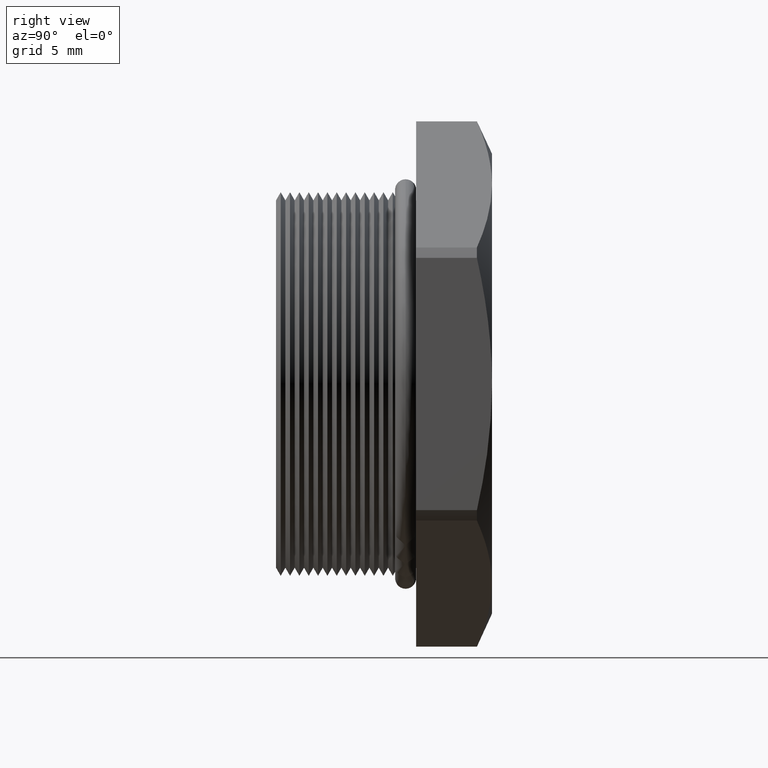
[diagram: clean part render]
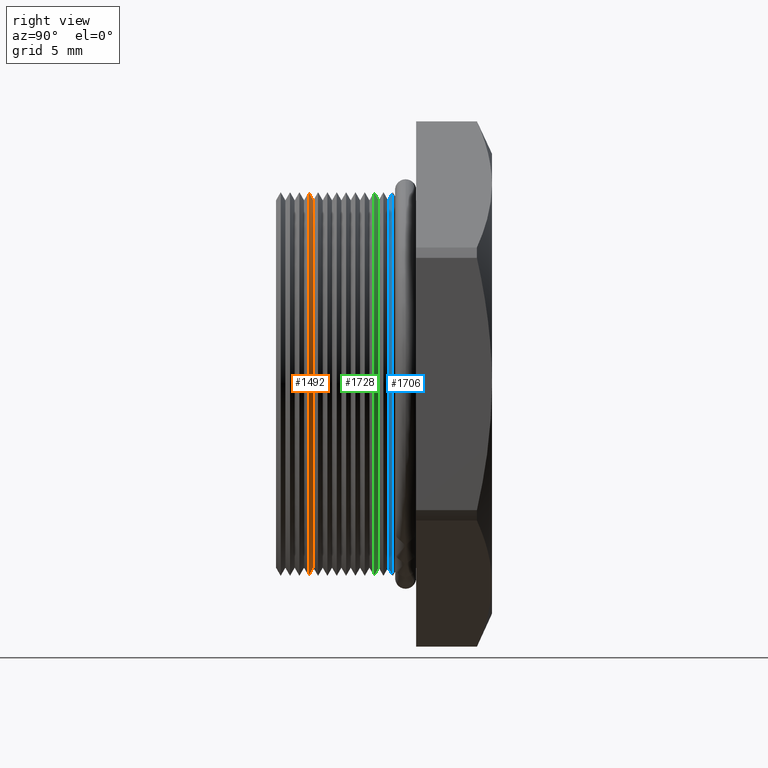
[diagram: same view with three faces highlighted in distinct colors, each labeled with its STEP entity id]
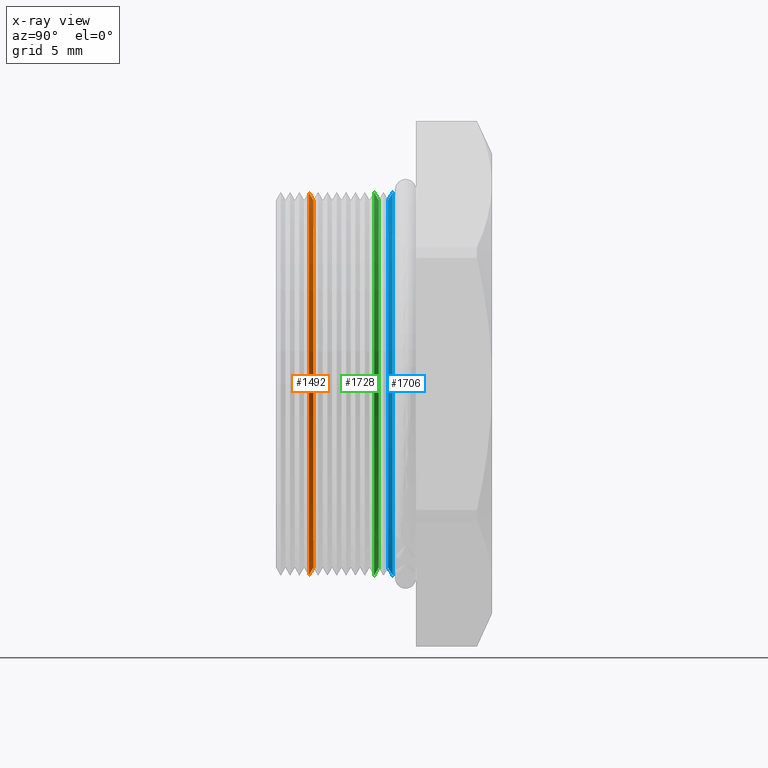
[diagram: x-ray of the same camera — body ghosted, the three highlighted faces saturated]
A machine part, right view with three faces highlighted in distinct colors.
The next image is the same camera in x-ray (body ghosted, the three faces saturated) — at least one of them is partly hidden behind the body in this view.
Their STEP definitions:

[orange] entity #1492 — the highlighted conical surface has half-angle 60 deg.
#1486 = VERTEX_POINT ( 'NONE', #4708 ) ;
#1488 = EDGE_CURVE ( 'NONE', #1489, #1486, #4707, .T. ) ;
#1489 = VERTEX_POINT ( 'NONE', #4702 ) ;
#1492 = ADVANCED_FACE ( 'NONE', ( #4695 ), #4694, .T. ) ;
#1493 = EDGE_LOOP ( 'NONE', ( #1494, #1498, #1555, #1556 ) ) ;
#1494 = ORIENTED_EDGE ( 'NONE', *, *, #1495, .T. ) ;
#1495 = EDGE_CURVE ( 'NONE', #1496, #1497, #4752, .T. ) ;
#1496 = VERTEX_POINT ( 'NONE', #4747 ) ;
#1497 = VERTEX_POINT ( 'NONE', #4746 ) ;
#1498 = ORIENTED_EDGE ( 'NONE', *, *, #1554, .T. ) ;
#1554 = EDGE_CURVE ( 'NONE', #1497, #1489, #4822, .T. ) ;
#1555 = ORIENTED_EDGE ( 'NONE', *, *, #1488, .T. ) ;
#1556 = ORIENTED_EDGE ( 'NONE', *, *, #1557, .F. ) ;
#1557 = EDGE_CURVE ( 'NONE', #1496, #1486, #4818, .T. ) ;
#4694 = CONICAL_SURFACE ( 'NONE', #4697, 0.3150000000000000000, 1.047197551196596700 ) ;
#4695 = FACE_OUTER_BOUND ( 'NONE', #1493, .T. ) ;
#4696 = CARTESIAN_POINT ( 'NONE',  ( 0.0000000000000000000, 0.1014172448100089100, 0.0000000000000000000 ) ) ;
#4697 = AXIS2_PLACEMENT_3D ( 'NONE', #4696, #4754, #4753 ) ;
#4702 = CARTESIAN_POINT ( 'NONE',  ( 4.026318816969966200E-017, 0.09346489058294796300, 0.3287738815610546400 ) ) ;
#4703 = DIRECTION ( 'NONE',  ( 0.0000000000000000000, 0.0000000000000000000, 1.000000000000000000 ) ) ;
#4704 = DIRECTION ( 'NONE',  ( -0.0000000000000000000, 1.000000000000000000, -0.0000000000000000000 ) ) ;
#4705 = CARTESIAN_POINT ( 'NONE',  ( 0.0000000000000000000, 0.09346489058294796300, 0.0000000000000000000 ) ) ;
#4706 = AXIS2_PLACEMENT_3D ( 'NONE', #4705, #4704, #4703 ) ;
#4707 = CIRCLE ( 'NONE', #4706, 0.3287738815610546400 ) ;
#4708 = CARTESIAN_POINT ( 'NONE',  ( 0.0000000000000000000, 0.09346489058294796300, -0.3287738815610546400 ) ) ;
#4746 = CARTESIAN_POINT ( 'NONE',  ( 3.857637417314162700E-017, 0.1014172448100089100, 0.3150000000000000000 ) ) ;
#4747 = CARTESIAN_POINT ( 'NONE',  ( 0.0000000000000000000, 0.1014172448100089100, -0.3150000000000000000 ) ) ;
#4748 = DIRECTION ( 'NONE',  ( 0.0000000000000000000, 0.0000000000000000000, -1.000000000000000000 ) ) ;
#4749 = DIRECTION ( 'NONE',  ( 0.0000000000000000000, -1.000000000000000000, 0.0000000000000000000 ) ) ;
#4750 = CARTESIAN_POINT ( 'NONE',  ( 0.0000000000000000000, 0.1014172448100089100, 0.0000000000000000000 ) ) ;
#4751 = AXIS2_PLACEMENT_3D ( 'NONE', #4750, #4749, #4748 ) ;
#4752 = CIRCLE ( 'NONE', #4751, 0.3150000000000000000 ) ;
#4753 = DIRECTION ( 'NONE',  ( 0.0000000000000000000, 0.0000000000000000000, -1.000000000000000000 ) ) ;
#4754 = DIRECTION ( 'NONE',  ( 0.0000000000000000000, -1.000000000000000000, 0.0000000000000000000 ) ) ;
#4818 = LINE ( 'NONE', #4880, #4879 ) ;
#4819 = DIRECTION ( 'NONE',  ( 1.060575238724906300E-016, -0.5000000000000008900, 0.8660254037844380400 ) ) ;
#4820 = VECTOR ( 'NONE', #4819, 39.37007874015748100 ) ;
#4821 = CARTESIAN_POINT ( 'NONE',  ( 3.857637417314162700E-017, 0.1014172448100089100, 0.3150000000000000000 ) ) ;
#4822 = LINE ( 'NONE', #4821, #4820 ) ;
#4878 = DIRECTION ( 'NONE',  ( 0.0000000000000000000, -0.5000000000000008900, -0.8660254037844380400 ) ) ;
#4879 = VECTOR ( 'NONE', #4878, 39.37007874015748100 ) ;
#4880 = CARTESIAN_POINT ( 'NONE',  ( 0.0000000000000000000, 0.1014172448100089100, -0.3150000000000000000 ) ) ;

[blue] entity #1706 — the highlighted conical surface has half-angle 60 deg.
#1706 = ADVANCED_FACE ( 'NONE', ( #5153 ), #5152, .T. ) ;
#1707 = EDGE_LOOP ( 'NONE', ( #1760, #1764, #1767, #1770 ) ) ;
#1760 = ORIENTED_EDGE ( 'NONE', *, *, #1761, .T. ) ;
#1761 = EDGE_CURVE ( 'NONE', #1762, #1763, #5237, .T. ) ;
#1762 = VERTEX_POINT ( 'NONE', #5232 ) ;
#1763 = VERTEX_POINT ( 'NONE', #5231 ) ;
#1764 = ORIENTED_EDGE ( 'NONE', *, *, #1765, .T. ) ;
#1765 = EDGE_CURVE ( 'NONE', #1763, #1766, #5230, .T. ) ;
#1766 = VERTEX_POINT ( 'NONE', #5226 ) ;
#1767 = ORIENTED_EDGE ( 'NONE', *, *, #1768, .F. ) ;
#1768 = EDGE_CURVE ( 'NONE', #1769, #1766, #5225, .T. ) ;
#1769 = VERTEX_POINT ( 'NONE', #5284 ) ;
#1770 = ORIENTED_EDGE ( 'NONE', *, *, #1771, .F. ) ;
#1771 = EDGE_CURVE ( 'NONE', #1762, #1769, #5283, .T. ) ;
#5148 = DIRECTION ( 'NONE',  ( 0.0000000000000000000, 0.0000000000000000000, 1.000000000000000000 ) ) ;
#5149 = DIRECTION ( 'NONE',  ( -0.0000000000000000000, 1.000000000000000000, -0.0000000000000000000 ) ) ;
#5150 = CARTESIAN_POINT ( 'NONE',  ( 0.0000000000000000000, 0.2375548905829479900, 0.0000000000000000000 ) ) ;
#5151 = AXIS2_PLACEMENT_3D ( 'NONE', #5150, #5149, #5148 ) ;
#5152 = CONICAL_SURFACE ( 'NONE', #5151, 0.3287738815610546400, 1.047197551196598700 ) ;
#5153 = FACE_OUTER_BOUND ( 'NONE', #1707, .T. ) ;
#5221 = DIRECTION ( 'NONE',  ( 0.0000000000000000000, 0.0000000000000000000, 1.000000000000000000 ) ) ;
#5222 = DIRECTION ( 'NONE',  ( -0.0000000000000000000, 1.000000000000000000, -0.0000000000000000000 ) ) ;
#5223 = CARTESIAN_POINT ( 'NONE',  ( 0.0000000000000000000, 0.2375548905829479900, 0.0000000000000000000 ) ) ;
#5224 = AXIS2_PLACEMENT_3D ( 'NONE', #5223, #5222, #5221 ) ;
#5225 = CIRCLE ( 'NONE', #5224, 0.3287738815610546400 ) ;
#5226 = CARTESIAN_POINT ( 'NONE',  ( 0.0000000000000000000, 0.2375548905829479900, -0.3287738815610546400 ) ) ;
#5227 = DIRECTION ( 'NONE',  ( 1.060575238724907500E-016, 0.4999999999999991100, -0.8660254037844391500 ) ) ;
#5228 = VECTOR ( 'NONE', #5227, 39.37007874015748100 ) ;
#5229 = CARTESIAN_POINT ( 'NONE',  ( 4.026318816969965600E-017, 0.2375548905829479900, -0.3287738815610546400 ) ) ;
#5230 = LINE ( 'NONE', #5229, #5228 ) ;
#5231 = CARTESIAN_POINT ( 'NONE',  ( 0.0000000000000000000, 0.2296025363558870700, -0.3150000000000000000 ) ) ;
#5232 = CARTESIAN_POINT ( 'NONE',  ( 3.857637417314162700E-017, 0.2296025363558870700, 0.3150000000000000000 ) ) ;
#5233 = DIRECTION ( 'NONE',  ( 0.0000000000000000000, 0.0000000000000000000, 1.000000000000000000 ) ) ;
#5234 = DIRECTION ( 'NONE',  ( -0.0000000000000000000, 1.000000000000000000, -0.0000000000000000000 ) ) ;
#5235 = CARTESIAN_POINT ( 'NONE',  ( 0.0000000000000000000, 0.2296025363558870700, 0.0000000000000000000 ) ) ;
#5236 = AXIS2_PLACEMENT_3D ( 'NONE', #5235, #5234, #5233 ) ;
#5237 = CIRCLE ( 'NONE', #5236, 0.3150000000000000000 ) ;
#5280 = DIRECTION ( 'NONE',  ( 0.0000000000000000000, 0.4999999999999991100, 0.8660254037844391500 ) ) ;
#5281 = VECTOR ( 'NONE', #5280, 39.37007874015748100 ) ;
#5282 = CARTESIAN_POINT ( 'NONE',  ( 0.0000000000000000000, 0.2375548905829479900, 0.3287738815610546400 ) ) ;
#5283 = LINE ( 'NONE', #5282, #5281 ) ;
#5284 = CARTESIAN_POINT ( 'NONE',  ( 4.026318816969966200E-017, 0.2375548905829479900, 0.3287738815610546400 ) ) ;

[green] entity #1728 — the highlighted conical surface has half-angle 60 deg.
#1650 = EDGE_CURVE ( 'NONE', #1651, #1652, #5017, .T. ) ;
#1651 = VERTEX_POINT ( 'NONE', #5012 ) ;
#1652 = VERTEX_POINT ( 'NONE', #5011 ) ;
#1653 = ORIENTED_EDGE ( 'NONE', *, *, #1654, .T. ) ;
#1654 = EDGE_CURVE ( 'NONE', #1652, #1725, #5010, .T. ) ;
#1655 = ORIENTED_EDGE ( 'NONE', *, *, #1724, .T. ) ;
#1670 = VERTEX_POINT ( 'NONE', #5042 ) ;
#1708 = ORIENTED_EDGE ( 'NONE', *, *, #1709, .F. ) ;
#1709 = EDGE_CURVE ( 'NONE', #1651, #1670, #5147, .T. ) ;
#1724 = EDGE_CURVE ( 'NONE', #1725, #1670, #5181, .T. ) ;
#1725 = VERTEX_POINT ( 'NONE', #5176 ) ;
#1728 = ADVANCED_FACE ( 'NONE', ( #5171 ), #5170, .T. ) ;
#1729 = EDGE_LOOP ( 'NONE', ( #1730, #1653, #1655, #1708 ) ) ;
#1730 = ORIENTED_EDGE ( 'NONE', *, *, #1650, .T. ) ;
#5007 = DIRECTION ( 'NONE',  ( 1.060575238724906300E-016, -0.5000000000000008900, 0.8660254037844380400 ) ) ;
#5008 = VECTOR ( 'NONE', #5007, 39.37007874015748100 ) ;
#5009 = CARTESIAN_POINT ( 'NONE',  ( 3.857637417314162700E-017, 0.2134872448100089100, 0.3150000000000000000 ) ) ;
#5010 = LINE ( 'NONE', #5009, #5008 ) ;
#5011 = CARTESIAN_POINT ( 'NONE',  ( 3.857637417314162700E-017, 0.2134872448100089100, 0.3150000000000000000 ) ) ;
#5012 = CARTESIAN_POINT ( 'NONE',  ( 0.0000000000000000000, 0.2134872448100089100, -0.3150000000000000000 ) ) ;
#5013 = DIRECTION ( 'NONE',  ( 0.0000000000000000000, 0.0000000000000000000, -1.000000000000000000 ) ) ;
#5014 = DIRECTION ( 'NONE',  ( 0.0000000000000000000, -1.000000000000000000, 0.0000000000000000000 ) ) ;
#5015 = CARTESIAN_POINT ( 'NONE',  ( 0.0000000000000000000, 0.2134872448100089100, 0.0000000000000000000 ) ) ;
#5016 = AXIS2_PLACEMENT_3D ( 'NONE', #5015, #5014, #5013 ) ;
#5017 = CIRCLE ( 'NONE', #5016, 0.3150000000000000000 ) ;
#5042 = CARTESIAN_POINT ( 'NONE',  ( 0.0000000000000000000, 0.2055348905829479900, -0.3287738815610545800 ) ) ;
#5144 = DIRECTION ( 'NONE',  ( 0.0000000000000000000, -0.5000000000000008900, -0.8660254037844380400 ) ) ;
#5145 = VECTOR ( 'NONE', #5144, 39.37007874015748100 ) ;
#5146 = CARTESIAN_POINT ( 'NONE',  ( 0.0000000000000000000, 0.2134872448100089100, -0.3150000000000000000 ) ) ;
#5147 = LINE ( 'NONE', #5146, #5145 ) ;
#5166 = DIRECTION ( 'NONE',  ( 0.0000000000000000000, 0.0000000000000000000, -1.000000000000000000 ) ) ;
#5167 = DIRECTION ( 'NONE',  ( 0.0000000000000000000, -1.000000000000000000, 0.0000000000000000000 ) ) ;
#5168 = CARTESIAN_POINT ( 'NONE',  ( 0.0000000000000000000, 0.2134872448100089100, 0.0000000000000000000 ) ) ;
#5169 = AXIS2_PLACEMENT_3D ( 'NONE', #5168, #5167, #5166 ) ;
#5170 = CONICAL_SURFACE ( 'NONE', #5169, 0.3150000000000000000, 1.047197551196596700 ) ;
#5171 = FACE_OUTER_BOUND ( 'NONE', #1729, .T. ) ;
#5176 = CARTESIAN_POINT ( 'NONE',  ( 4.026318816969965600E-017, 0.2055348905829479900, 0.3287738815610545800 ) ) ;
#5177 = DIRECTION ( 'NONE',  ( 0.0000000000000000000, 0.0000000000000000000, 1.000000000000000000 ) ) ;
#5178 = DIRECTION ( 'NONE',  ( -0.0000000000000000000, 1.000000000000000000, -0.0000000000000000000 ) ) ;
#5179 = CARTESIAN_POINT ( 'NONE',  ( 0.0000000000000000000, 0.2055348905829479900, 0.0000000000000000000 ) ) ;
#5180 = AXIS2_PLACEMENT_3D ( 'NONE', #5179, #5178, #5177 ) ;
#5181 = CIRCLE ( 'NONE', #5180, 0.3287738815610546400 ) ;